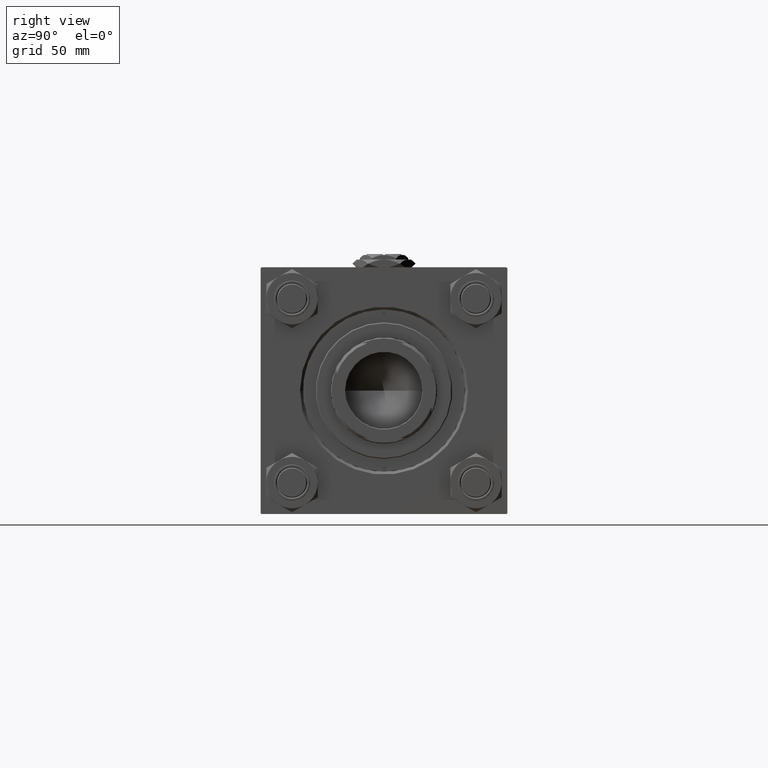
[diagram: clean part render]
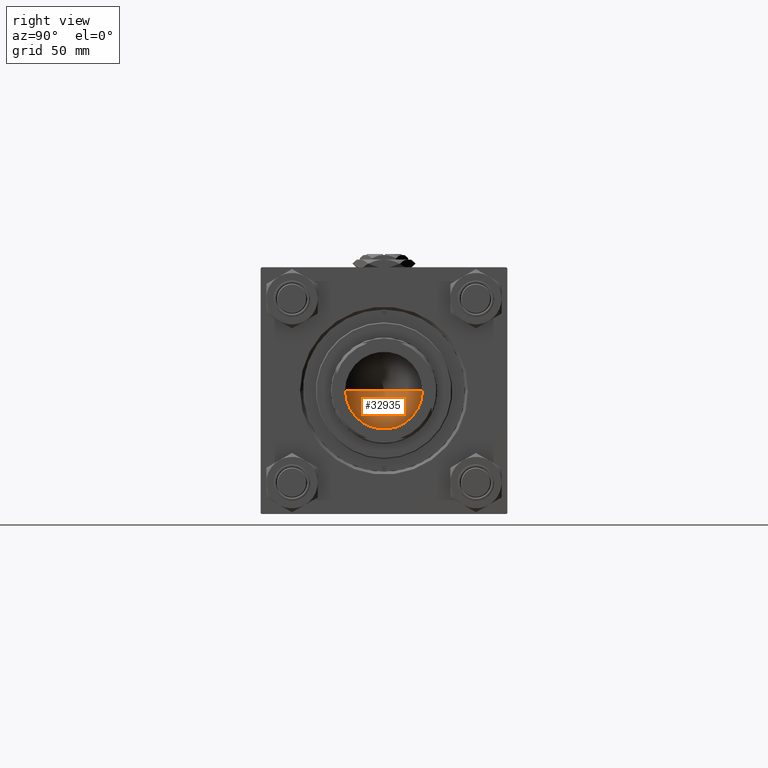
[diagram: same view with one face highlighted and labeled with its STEP entity id]
A machine part, right view. The second image highlights one B-rep face of the part: STEP entity #32935.
In plain terms, the highlighted conical surface has half-angle 59 deg.
Its self-contained STEP definition (entity closure, byte-faithful):
#958 = CONICAL_SURFACE ( 'NONE', #17135, 20.24999999999998934, 1.029744258676652979 ) ;
#1130 = CARTESIAN_POINT ( 'NONE',  ( -20.24999999999998934, 2.479909768273389117E-15, 117.0000000000000142 ) ) ;
#3608 = CARTESIAN_POINT ( 'NONE',  ( 20.24999999999998934, 0.000000000000000000, 117.0000000000000142 ) ) ;
#4111 = DIRECTION ( 'NONE',  ( 0.8571673007021115565, 0.000000000000000000, 0.5150380749100554878 ) ) ;
#4372 = CARTESIAN_POINT ( 'NONE',  ( 20.24999999999998934, 0.000000000000000000, 117.0000000000000142 ) ) ;
#4871 = VECTOR ( 'NONE', #6343, 1000.000000000000000 ) ;
#5218 = ORIENTED_EDGE ( 'NONE', *, *, #20487, .T. ) ;
#6343 = DIRECTION ( 'NONE',  ( -0.8571673007021115565, 1.049727191138617710E-16, 0.5150380749100554878 ) ) ;
#10533 = ORIENTED_EDGE ( 'NONE', *, *, #37572, .F. ) ;
#12114 = AXIS2_PLACEMENT_3D ( 'NONE', #23701, #40216, #23967 ) ;
#15644 = EDGE_CURVE ( 'NONE', #51924, #42736, #24058, .T. ) ;
#17135 = AXIS2_PLACEMENT_3D ( 'NONE', #30011, #18276, #26017 ) ;
#18276 = DIRECTION ( 'NONE',  ( -0.000000000000000000, -0.000000000000000000, 1.000000000000000000 ) ) ;
#20487 = EDGE_CURVE ( 'NONE', #26476, #51924, #48622, .T. ) ;
#23701 = CARTESIAN_POINT ( 'NONE',  ( 0.000000000000000000, 0.000000000000000000, 117.0000000000000142 ) ) ;
#23967 = DIRECTION ( 'NONE',  ( 1.000000000000000000, 0.000000000000000000, 0.000000000000000000 ) ) ;
#24058 = CIRCLE ( 'NONE', #12114, 20.24999999999998934 ) ;
#26017 = DIRECTION ( 'NONE',  ( 1.000000000000000000, 0.000000000000000000, 0.000000000000000000 ) ) ;
#26476 = VERTEX_POINT ( 'NONE', #37825 ) ;
#26570 = EDGE_LOOP ( 'NONE', ( #10533, #5218, #41242 ) ) ;
#30011 = CARTESIAN_POINT ( 'NONE',  ( 0.000000000000000000, 0.000000000000000000, 117.0000000000000142 ) ) ;
#31665 = LINE ( 'NONE', #35387, #4871 ) ;
#32935 = ADVANCED_FACE ( 'NONE', ( #50244 ), #958, .F. ) ;
#35387 = CARTESIAN_POINT ( 'NONE',  ( -20.24999999999998934, 2.479909768273389117E-15, 117.0000000000000142 ) ) ;
#36071 = VECTOR ( 'NONE', #4111, 1000.000000000000000 ) ;
#37572 = EDGE_CURVE ( 'NONE', #26476, #42736, #31665, .T. ) ;
#37825 = CARTESIAN_POINT ( 'NONE',  ( -1.584115414415908206E-14, 0.000000000000000000, 104.8325724646918928 ) ) ;
#40216 = DIRECTION ( 'NONE',  ( -0.000000000000000000, -0.000000000000000000, 1.000000000000000000 ) ) ;
#41242 = ORIENTED_EDGE ( 'NONE', *, *, #15644, .T. ) ;
#42736 = VERTEX_POINT ( 'NONE', #1130 ) ;
#48622 = LINE ( 'NONE', #4372, #36071 ) ;
#50244 = FACE_OUTER_BOUND ( 'NONE', #26570, .T. ) ;
#51924 = VERTEX_POINT ( 'NONE', #3608 ) ;